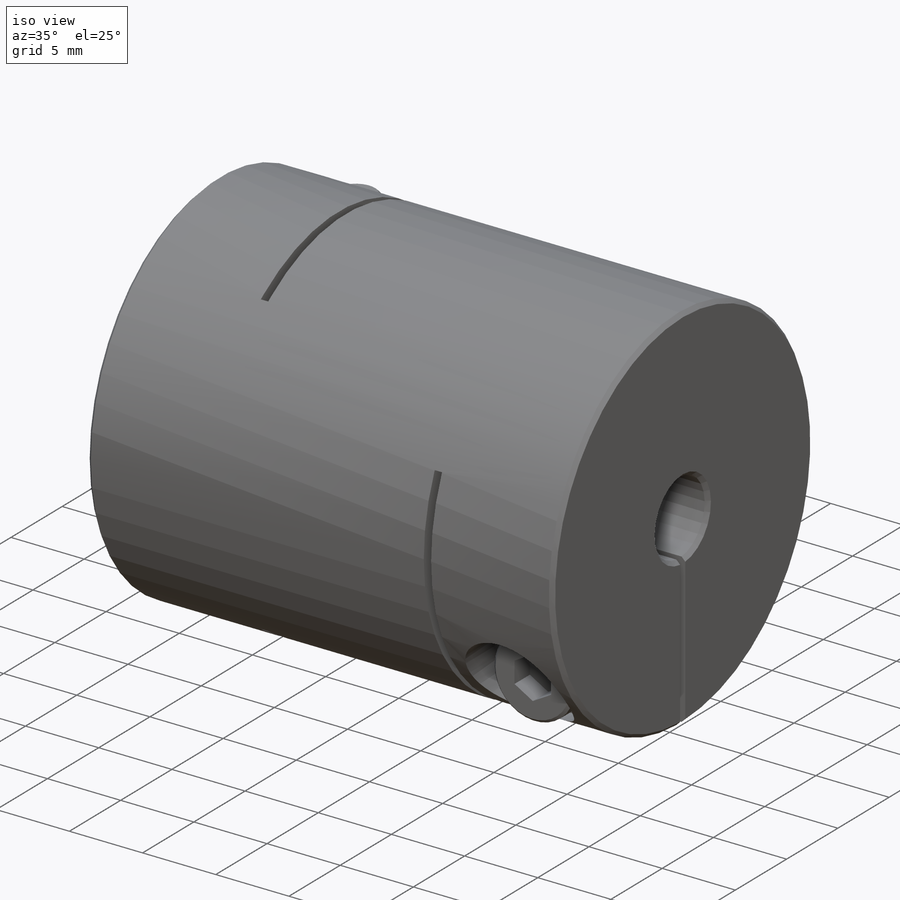
[diagram: iso view]
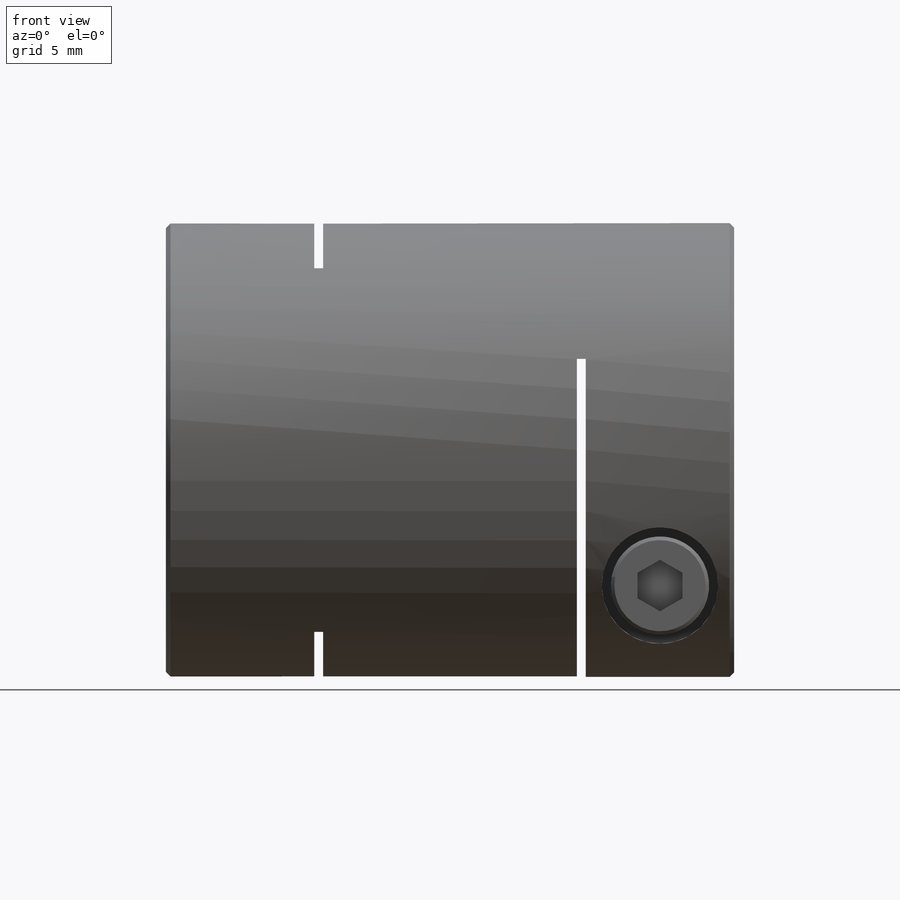
[diagram: front view]
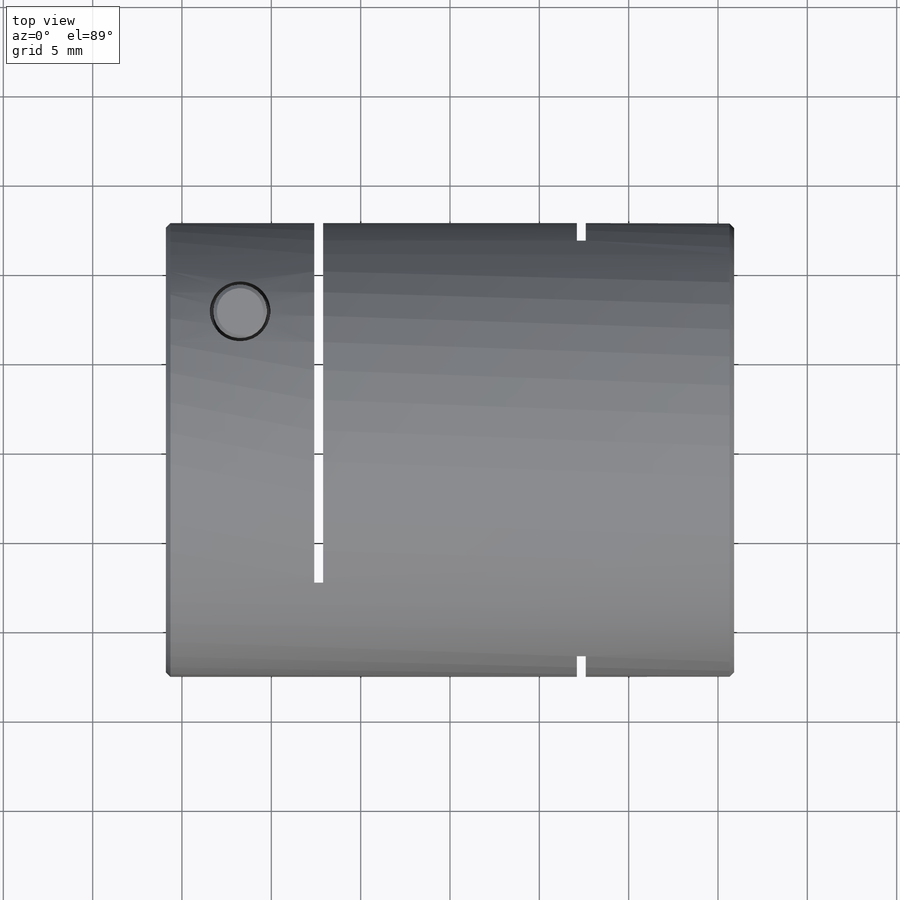
[diagram: top view]
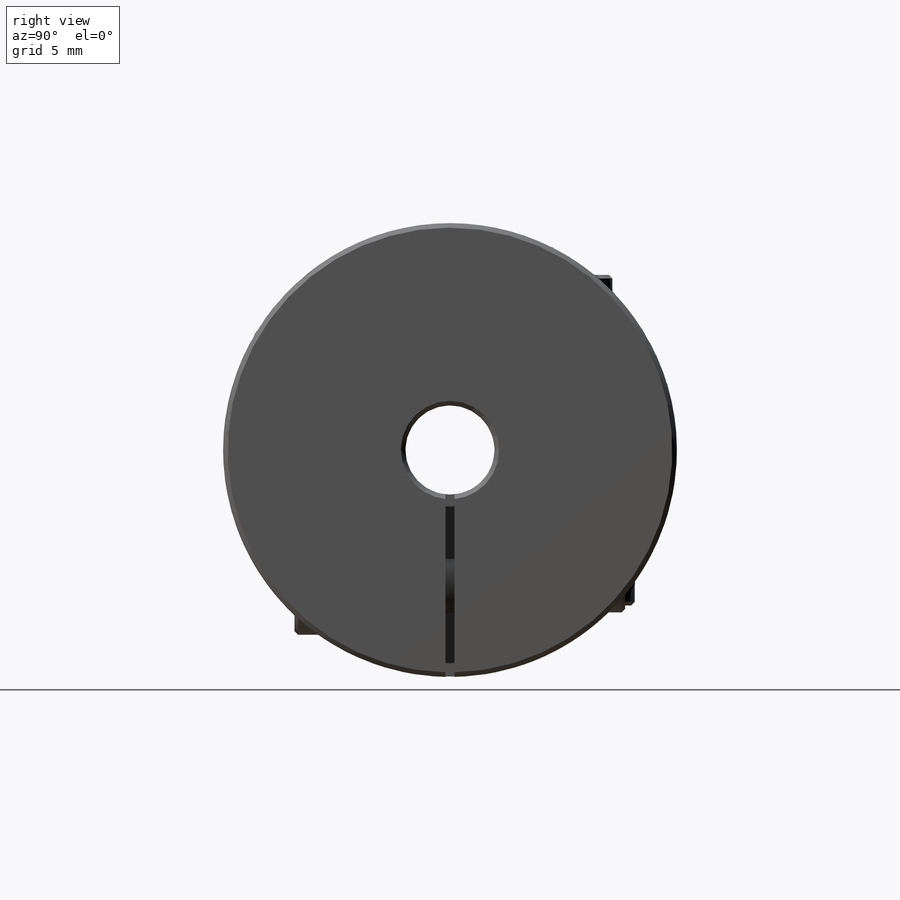
[diagram: right view]
SOLIDWORKS PART (.sldprt)
format: sldprt  version: not decoded by parser v0  size: 513,536 bytes
history: native  units: mm
features: sketch x13, cut_extrude x6, plane x4, extrude x3, chamfer x2, hole x2, material x1, mirror x1, pattern_circular x1, delete_body x1 + 1 further entry (+17 scaffold rows collapsed)
feature tree (52):
  scaffold x17  (default folders/planes/origin — collapsed)
  material  "Material <not specified>"
  "Design Table"
  sketch  "Sketch1"  dims[dim D=25.4mm]
  extrude  "Boss-Extrude1"  Depth=31.8mm dim L=31.8mm
  sketch  "Sketch2"  dims[dim D1=5.0mm]
  cut_extrude  "Cut-Extrude1"  [1 undecoded]
  chamfer  "Chamfer1"  Distance=0.254mm Angle=45deg
  plane  "Plane2"
  plane  "L1"  Offset=4.15mm Dim L1=4.15mm
  sketch  "Sketch4"  dims[D1=0.5mm]
  cut_extrude  "Cut-Extrude2"  [1 undecoded]
  plane  "Plane4"
  sketch  "Sketch7"
  cut_extrude  "Cut-Extrude3"  [1 undecoded]
  sketch  "Sketch8"
  cut_extrude  "Cut-Extrude5"  Depth=0.5mm
  sketch  "Sketch13"
  cut_extrude  "Cut-Extrude6"  Depth=0.5mm
  hole  "CBORE for M3 SHCS1"  Diameter=3.4mm Depth=25.4mm
  sketch  "Sketch12"
  sketch  "Sketch11"  dims[hole-wizard template sketch: 42 standard entries collapsed; hole parameters kept: c12.Thru Hole Depth=25.4mm c12.C'Bore Dia.=6.5mm c12.C'Bore Depth=7.0mm]
  plane  "Plane5"
  hole  "CBORE for M3 SHCS2"  Diameter=3.4mm Depth=25.4mm
  sketch  "Sketch15"
  sketch  "Sketch14"  dims[hole-wizard template sketch: 42 standard entries collapsed; hole parameters kept: c12.Thru Hole Depth=25.4mm c12.C'Bore Dia.=6.5mm c12.C'Bore Depth=7.0mm]
  sketch  "Sketch16"  dims[screw dia=5.5mm]
  extrude  "Boss-Extrude2"  Depth=3mm screw height=3mm
  sketch  "Sketch17"  dims[D1=3.0mm]
  extrude  "Boss-Extrude3"  Depth=15.5mm
  chamfer  "Chamfer2"  Distance=0.2mm Angle=45deg
  sketch  "Sketch18"  dims[hex=2.5mm]
  cut_extrude  "Cut-Extrude7"  Depth=1.5mm
  mirror  "Mirror1"
  pattern_circular  "CirPattern1"  Count=2 Angle=90deg
  delete_body  "Body-Delete1"
decode coverage: 19 of 29 modeling features carry decoded parameters; 1 rows unclassified (native names shown)
note: ~ marks probable driven/reference dimensions
note: 3 parameter values undecoded
summary: no parameter record found for 3 features
note: suppression state not decoded; provenance and decode notes live in map.json
